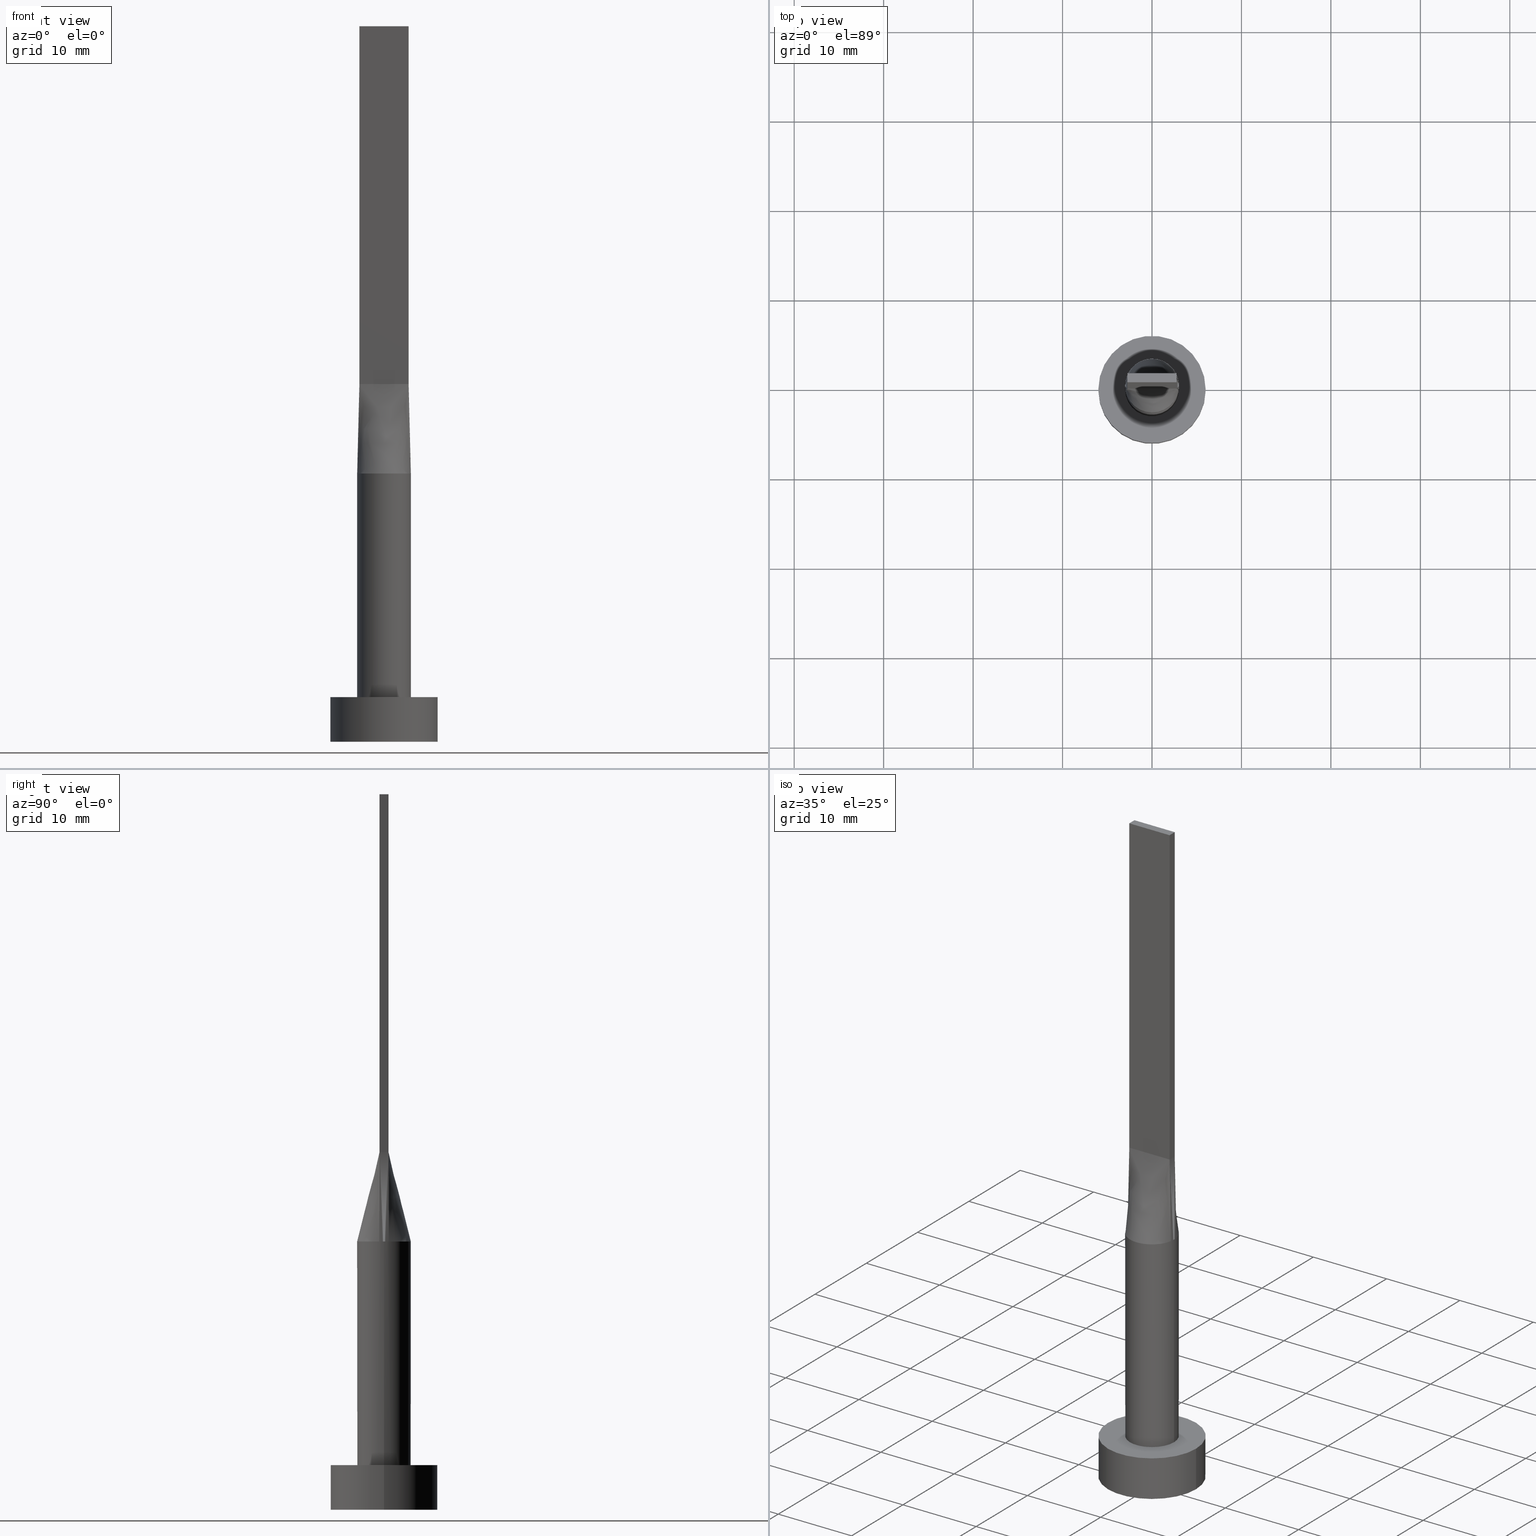
[diagram: canonical four-view strip — front | top / right | iso, engineering-drawing reading convention]
A machine part, canonical four-view strip (front | top / right | iso — engineering-drawing reading convention). The complete STEP part file that produces these views, byte-faithful:
ISO-10303-21;
HEADER;
FILE_DESCRIPTION (( 'STEP AP203' ),
    '1' );
FILE_NAME ('9335.STEP',
    '2023-02-13T12:29:20',
    ( '' ),
    ( '' ),
    'SwSTEP 2.0',
    'SolidWorks 2019',
    '' );
FILE_SCHEMA (( 'CONFIG_CONTROL_DESIGN' ));
ENDSEC;

DATA;
#1 = CARTESIAN_POINT ( 'NONE',  ( 0.000000000000000000, 0.000000000000000000, 0.000000000000000000 ) ) ;
#2 = DIRECTION ( 'NONE',  ( 0.000000000000000000, 0.000000000000000000, 1.000000000000000000 ) ) ;
#3 = CARTESIAN_POINT ( 'NONE',  ( -0.8331239790496237640, 2.909606296598777231, 30.00000000000000000 ) ) ;
#4 = CARTESIAN_POINT ( 'NONE',  ( -2.750000000000000000, 0.5000000000000002220, 40.00000000000000000 ) ) ;
#5 = EDGE_CURVE ( 'NONE', #171, #61, #465, .T. ) ;
#6 = LINE ( 'NONE', #543, #510 ) ;
#7 = CARTESIAN_POINT ( 'NONE',  ( 2.951871110830718514, 0.5367036202482695639, 30.00000000000000355 ) ) ;
#8 = CARTESIAN_POINT ( 'NONE',  ( 0.4172881767044975820, 3.000000000000000000, 30.00000000000000355 ) ) ;
#9 = B_SPLINE_SURFACE_WITH_KNOTS ( 'NONE', 3, 1, ( 
 ( #134, #189 ),
 ( #377, #374 ),
 ( #364, #280 ),
 ( #542, #51 ),
 ( #232, #276 ),
 ( #548, #324 ) ),
 .UNSPECIFIED., .F., .F., .F.,
 ( 4, 2, 4 ),
 ( 2, 2 ),
 ( 0.000000000000000000, 0.5000000000000000000, 1.000000000000000000 ),
 ( 0.000000000000000000, 1.000000000000000000 ),
 .UNSPECIFIED. ) ;
#10 = FACE_OUTER_BOUND ( 'NONE', #450, .T. ) ;
#11 = EDGE_CURVE ( 'NONE', #560, #127, #547, .T. ) ;
#12 = CALENDAR_DATE ( 2023, 13, 2 ) ;
#13 = CARTESIAN_POINT ( 'NONE',  ( 2.750000000000000000, -0.1666666666666653529, 39.99999999999999289 ) ) ;
#14 = SECURITY_CLASSIFICATION_LEVEL ( 'unclassified' ) ;
#15 = CARTESIAN_POINT ( 'NONE',  ( -3.000000000000000444, 0.000000000000000000, 30.00000000000000355 ) ) ;
#16 = EDGE_LOOP ( 'NONE', ( #291, #200, #516, #106 ) ) ;
#17 = PERSON_AND_ORGANIZATION ( #500, #67 ) ;
#18 = CARTESIAN_POINT ( 'NONE',  ( 0.000000000000000000, 0.000000000000000000, 30.00000000000000355 ) ) ;
#19 = ADVANCED_FACE ( 'NONE', ( #361 ), #216, .F. ) ;
#20 = EDGE_LOOP ( 'NONE', ( #211, #403, #489, #197 ) ) ;
#21 = DIRECTION ( 'NONE',  ( -0.000000000000000000, -0.000000000000000000, -1.000000000000000000 ) ) ;
#22 = LINE ( 'NONE', #15, #282 ) ;
#23 = ORIENTED_EDGE ( 'NONE', *, *, #570, .T. ) ;
#24 = UNCERTAINTY_MEASURE_WITH_UNIT (LENGTH_MEASURE( 1.000000000000000082E-05 ), #191, 'distance_accuracy_value', 'NONE');
#25 = CARTESIAN_POINT ( 'NONE',  ( 0.000000000000000000, 0.000000000000000000, 5.000000000000000000 ) ) ;
#26 = LINE ( 'NONE', #334, #490 ) ;
#27 = VERTEX_POINT ( 'NONE', #405 ) ;
#28 = AXIS2_PLACEMENT_3D ( 'NONE', #185, #235, #273 ) ;
#29 = APPROVAL_PERSON_ORGANIZATION ( #333, #99, #433 ) ;
#30 = CARTESIAN_POINT ( 'NONE',  ( -2.567367750129864845, -1.580669302822274691, 30.00000000000001066 ) ) ;
#31 = ORIENTED_EDGE ( 'NONE', *, *, #446, .F. ) ;
#32 = EDGE_CURVE ( 'NONE', #335, #519, #494, .T. ) ;
#33 = CARTESIAN_POINT ( 'NONE',  ( -1.882426928433514224, -2.362790634184934291, 30.00000000000000355 ) ) ;
#34 = ORIENTED_EDGE ( 'NONE', *, *, #268, .T. ) ;
#35 = APPROVAL_STATUS ( 'not_yet_approved' ) ;
#36 = CARTESIAN_POINT ( 'NONE',  ( -0.4172881767044983592, -2.999999999999999556, 30.00000000000000355 ) ) ;
#37 = PLANE ( 'NONE',  #481 ) ;
#38 = CIRCLE ( 'NONE', #370, 3.000000000000000444 ) ;
#39 = CARTESIAN_POINT ( 'NONE',  ( 0.8331239790496235420, -2.909606296598777231, 30.00000000000000000 ) ) ;
#40 = CARTESIAN_POINT ( 'NONE',  ( 0.000000000000000000, 0.000000000000000000, 30.00000000000000355 ) ) ;
#41 = EDGE_CURVE ( 'NONE', #252, #335, #122, .T. ) ;
#42 = CARTESIAN_POINT ( 'NONE',  ( 2.750000000000000000, 0.5000000000000002220, 80.00000000000000000 ) ) ;
#43 = ORIENTED_EDGE ( 'NONE', *, *, #305, .T. ) ;
#44 = CARTESIAN_POINT ( 'NONE',  ( -0.2291666666666670460, 0.5000000000000002220, 39.99999999999999289 ) ) ;
#45 = CARTESIAN_POINT ( 'NONE',  ( -2.750000000000000000, -0.4999999999999994449, 80.00000000000000000 ) ) ;
#46 = DIRECTION ( 'NONE',  ( -0.000000000000000000, -0.000000000000000000, -1.000000000000000000 ) ) ;
#47 = DIRECTION ( 'NONE',  ( 1.000000000000000000, -5.913830031739115543E-17, 0.000000000000000000 ) ) ;
#48 =( GEOMETRIC_REPRESENTATION_CONTEXT ( 3 ) GLOBAL_UNCERTAINTY_ASSIGNED_CONTEXT ( ( #24 ) ) GLOBAL_UNIT_ASSIGNED_CONTEXT ( ( #191, #381, #149 ) ) REPRESENTATION_CONTEXT ( 'NONE', 'WORKASPACE' ) );
#49 = EDGE_CURVE ( 'NONE', #27, #257, #76, .T. ) ;
#50 = CARTESIAN_POINT ( 'NONE',  ( -1.145833333333333703, 0.5000000000000002220, 39.99999999999999289 ) ) ;
#51 = CARTESIAN_POINT ( 'NONE',  ( -2.750000000000000000, -0.1666666666666678787, 39.99999999999999289 ) ) ;
#52 = CARTESIAN_POINT ( 'NONE',  ( 0.000000000000000000, 0.000000000000000000, 5.000000000000000000 ) ) ;
#53 = DIRECTION ( 'NONE',  ( 1.000000000000000000, 0.000000000000000000, 0.000000000000000000 ) ) ;
#54 = CARTESIAN_POINT ( 'NONE',  ( -6.000000000000000888, 0.000000000000000000, 5.000000000000000000 ) ) ;
#55 = CARTESIAN_POINT ( 'NONE',  ( 2.750000000000000000, 0.5000000000000002220, 80.00000000000000000 ) ) ;
#56 = CC_DESIGN_DATE_AND_TIME_ASSIGNMENT ( #155, #391, ( #80 ) ) ;
#57 = PERSON_AND_ORGANIZATION ( #500, #67 ) ;
#58 = LINE ( 'NONE', #415, #112 ) ;
#59 = CALENDAR_DATE ( 2023, 13, 2 ) ;
#60 = CARTESIAN_POINT ( 'NONE',  ( 2.951609730299722845, 0.5366563145999491136, 30.00000000000000355 ) ) ;
#61 = VERTEX_POINT ( 'NONE', #398 ) ;
#62 = ADVANCED_FACE ( 'NONE', ( #351, #530 ), #37, .T. ) ;
#63 = COORDINATED_UNIVERSAL_TIME_OFFSET ( 1, 0, .AHEAD. ) ;
#64 = CARTESIAN_POINT ( 'NONE',  ( 6.000000000000000888, 7.347880794884120722E-16, 0.000000000000000000 ) ) ;
#65 = CLOSED_SHELL ( 'NONE', ( #210, #531, #151, #62, #247, #545, #394, #336, #167, #429, #119, #310, #502, #19, #320 ) ) ;
#66 = ORIENTED_EDGE ( 'NONE', *, *, #135, .F. ) ;
#67 = ORGANIZATION ( 'NEUR�EN�', 'NEUR�EN�', '' ) ;
#68 = APPLICATION_PROTOCOL_DEFINITION ( 'international standard', 'config_control_design', 1994, #281 ) ;
#69 = PLANE ( 'NONE',  #466 ) ;
#70 = VERTEX_POINT ( 'NONE', #499 ) ;
#71 = CARTESIAN_POINT ( 'NONE',  ( 2.750000000000000000, -0.3333333333333324267, 39.99999999999999289 ) ) ;
#72 = ORIENTED_EDGE ( 'NONE', *, *, #49, .T. ) ;
#73 = DIRECTION ( 'NONE',  ( -0.000000000000000000, 0.000000000000000000, -1.000000000000000000 ) ) ;
#74 = EDGE_LOOP ( 'NONE', ( #438, #34, #120, #66, #332 ) ) ;
#75 = CARTESIAN_POINT ( 'NONE',  ( 2.520833333333333037, 0.5000000000000002220, 39.99999999999999289 ) ) ;
#76 = LINE ( 'NONE', #445, #292 ) ;
#77 = CARTESIAN_POINT ( 'NONE',  ( -0.8331239790496237640, 2.909606296598777231, 30.00000000000000000 ) ) ;
#78 = DIRECTION ( 'NONE',  ( -1.000000000000000000, 0.000000000000000000, 0.000000000000000000 ) ) ;
#79 = APPROVAL_DATE_TIME ( #214, #192 ) ;
#80 = PRODUCT_DEFINITION ( 'NEZN�M�', '', #103, #371 ) ;
#81 = CARTESIAN_POINT ( 'NONE',  ( -2.907609730299723250, 0.7786563145999495505, 30.00000000000000355 ) ) ;
#82 = ORIENTED_EDGE ( 'NONE', *, *, #418, .F. ) ;
#83 = CARTESIAN_POINT ( 'NONE',  ( -0.8331239790496242081, -2.909606296598777231, 30.00000000000000355 ) ) ;
#84 = VECTOR ( 'NONE', #511, 1000.000000000000000 ) ;
#85 = EDGE_LOOP ( 'NONE', ( #296, #117, #448, #162 ) ) ;
#86 = AXIS2_PLACEMENT_3D ( 'NONE', #144, #21, #507 ) ;
#87 = CARTESIAN_POINT ( 'NONE',  ( -2.907609730299723250, 0.7786563145999495505, 30.00000000000000355 ) ) ;
#88 = ORIENTED_EDGE ( 'NONE', *, *, #478, .T. ) ;
#89 = CARTESIAN_POINT ( 'NONE',  ( -1.566158656300002061, 2.589797565249319700, 30.00000000000000000 ) ) ;
#90 = LINE ( 'NONE', #4, #360 ) ;
#91 = EDGE_CURVE ( 'NONE', #479, #355, #38, .T. ) ;
#92 = DIRECTION ( 'NONE',  ( 0.000000000000000000, 0.000000000000000000, 1.000000000000000000 ) ) ;
#93 = CARTESIAN_POINT ( 'NONE',  ( 0.000000000000000000, 0.000000000000000000, 30.00000000000000355 ) ) ;
#94 = SECURITY_CLASSIFICATION ( '', '', #14 ) ;
#95 = B_SPLINE_CURVE_WITH_KNOTS ( 'NONE', 3,
 ( #170, #492, #209, #207, #251, #205, #259, #532, #440, #306, #77, #452, #212, #399, #572, #126, #81, #574 ),
 .UNSPECIFIED., .F., .F.,
 ( 4, 2, 2, 2, 2, 2, 2, 2, 4 ),
 ( 0.000000000000000000, 0.1250000000000000000, 0.2500000000000000000, 0.3750000000000000000, 0.5000000000000000000, 0.6250000000000000000, 0.7500000000000000000, 0.8750000000000000000, 1.000000000000000000 ),
 .UNSPECIFIED. ) ;
#96 = CARTESIAN_POINT ( 'NONE',  ( -1.604166666666666963, 0.5000000000000002220, 39.99999999999999289 ) ) ;
#97 = LINE ( 'NONE', #55, #264 ) ;
#98 = DIRECTION ( 'NONE',  ( -0.000000000000000000, -0.000000000000000000, -1.000000000000000000 ) ) ;
#99 = APPROVAL ( #388, 'NEUR�EN�' ) ;
#100 = CARTESIAN_POINT ( 'NONE',  ( 2.999804865149861666, 7.183978618307599791E-16, 30.00000000000000355 ) ) ;
#101 = DIRECTION ( 'NONE',  ( 0.000000000000000000, 0.000000000000000000, 1.000000000000000000 ) ) ;
#102 = CARTESIAN_POINT ( 'NONE',  ( 0.000000000000000000, 0.000000000000000000, 5.000000000000000000 ) ) ;
#103 = PRODUCT_DEFINITION_FORMATION_WITH_SPECIFIED_SOURCE ( 'LIBOVOLN�', '', #412, .NOT_KNOWN. ) ;
#104 = PERSON_AND_ORGANIZATION_ROLE ( 'classification_officer' ) ;
#105 = LINE ( 'NONE', #382, #253 ) ;
#106 = ORIENTED_EDGE ( 'NONE', *, *, #159, .T. ) ;
#107 = PERSON_AND_ORGANIZATION_ROLE ( 'creator' ) ;
#108 = DIRECTION ( 'NONE',  ( 0.02015674154923146819, -0.003664862099860173583, 0.9997901152521495582 ) ) ;
#109 = ORIENTED_EDGE ( 'NONE', *, *, #285, .F. ) ;
#110 = EDGE_CURVE ( 'NONE', #519, #471, #58, .T. ) ;
#111 = LINE ( 'NONE', #477, #539 ) ;
#112 = VECTOR ( 'NONE', #459, 1000.000000000000114 ) ;
#113 = ORIENTED_EDGE ( 'NONE', *, *, #570, .F. ) ;
#114 = AXIS2_PLACEMENT_3D ( 'NONE', #1, #579, #376 ) ;
#115 = DATE_AND_TIME ( #12, #431 ) ;
#116 = DIRECTION ( 'NONE',  ( -1.000000000000000000, -0.000000000000000000, -0.000000000000000000 ) ) ;
#117 = ORIENTED_EDGE ( 'NONE', *, *, #217, .F. ) ;
#118 = CARTESIAN_POINT ( 'NONE',  ( -3.000000000000000444, 0.000000000000000000, 5.000000000000000000 ) ) ;
#119 = ADVANCED_FACE ( 'NONE', ( #182 ), #508, .F. ) ;
#120 = ORIENTED_EDGE ( 'NONE', *, *, #110, .F. ) ;
#121 = CARTESIAN_POINT ( 'NONE',  ( 2.951609730299722401, 0.5366563145999496687, 30.00000000000000355 ) ) ;
#122 = LINE ( 'NONE', #304, #230 ) ;
#123 = CARTESIAN_POINT ( 'NONE',  ( -0.4583333333333340365, -0.4999999999999995559, 39.99999999999999289 ) ) ;
#124 = EDGE_LOOP ( 'NONE', ( #43, #573, #524, #538 ) ) ;
#125 = EDGE_CURVE ( 'NONE', #355, #479, #203, .T. ) ;
#126 = CARTESIAN_POINT ( 'NONE',  ( -2.829409566978765334, 1.041313647073049298, 30.00000000000001066 ) ) ;
#127 = VERTEX_POINT ( 'NONE', #100 ) ;
#128 = CARTESIAN_POINT ( 'NONE',  ( 0.2291666666666659635, -0.4999999999999995559, 39.99999999999999289 ) ) ;
#129 = VERTEX_POINT ( 'NONE', #147 ) ;
#130 = VECTOR ( 'NONE', #571, 1000.000000000000000 ) ;
#131 = CARTESIAN_POINT ( 'NONE',  ( 0.4583333333333325932, -0.4999999999999995559, 39.99999999999999289 ) ) ;
#132 = DIRECTION ( 'NONE',  ( 1.000000000000000000, 0.000000000000000000, 0.000000000000000000 ) ) ;
#133 = CARTESIAN_POINT ( 'NONE',  ( 1.833333333333333037, 0.5000000000000002220, 39.99999999999999289 ) ) ;
#134 = CARTESIAN_POINT ( 'NONE',  ( -2.951609730299722401, 0.5366563145999495577, 30.00000000000000355 ) ) ;
#135 = EDGE_CURVE ( 'NONE', #70, #519, #90, .T. ) ;
#136 = FACE_OUTER_BOUND ( 'NONE', #339, .T. ) ;
#137 = CYLINDRICAL_SURFACE ( 'NONE', #549, 6.000000000000000888 ) ;
#138 = AXIS2_PLACEMENT_3D ( 'NONE', #173, #487, #132 ) ;
#139 = PLANE ( 'NONE',  #523 ) ;
#140 = CARTESIAN_POINT ( 'NONE',  ( 0.000000000000000000, 0.000000000000000000, 5.000000000000000000 ) ) ;
#141 = CIRCLE ( 'NONE', #342, 6.000000000000000888 ) ;
#142 = APPROVAL_PERSON_ORGANIZATION ( #57, #495, #289 ) ;
#143 = EDGE_CURVE ( 'NONE', #471, #560, #509, .T. ) ;
#144 = CARTESIAN_POINT ( 'NONE',  ( 0.000000000000000000, 0.000000000000000000, 30.00000000000000355 ) ) ;
#145 = DIRECTION ( 'NONE',  ( 1.000000000000000000, 0.000000000000000000, -0.000000000000000000 ) ) ;
#146 = CARTESIAN_POINT ( 'NONE',  ( -0.4583333333333337034, 0.5000000000000002220, 39.99999999999999289 ) ) ;
#147 = CARTESIAN_POINT ( 'NONE',  ( 2.750000000000000000, 0.5000000000000002220, 40.00000000000000000 ) ) ;
#148 = CARTESIAN_POINT ( 'NONE',  ( 2.750000000000000000, 0.5000000000000002220, 40.00000000000000000 ) ) ;
#149 =( NAMED_UNIT ( * ) SI_UNIT ( $, .STERADIAN. ) SOLID_ANGLE_UNIT ( ) );
#150 = DIRECTION ( 'NONE',  ( -0.000000000000000000, -0.000000000000000000, -1.000000000000000000 ) ) ;
#151 = ADVANCED_FACE ( 'NONE', ( #229 ), #137, .T. ) ;
#152 = VERTEX_POINT ( 'NONE', #7 ) ;
#153 = DIRECTION ( 'NONE',  ( 1.000000000000000000, 0.000000000000000000, 0.000000000000000000 ) ) ;
#154 = ORIENTED_EDGE ( 'NONE', *, *, #305, .F. ) ;
#155 = DATE_AND_TIME ( #422, #383 ) ;
#156 = DIRECTION ( 'NONE',  ( 0.000000000000000000, 0.000000000000000000, 1.000000000000000000 ) ) ;
#157 = ORIENTED_EDGE ( 'NONE', *, *, #401, .T. ) ;
#158 = APPLICATION_CONTEXT ( 'configuration controlled 3d designs of mechanical parts and assemblies' ) ;
#159 = EDGE_CURVE ( 'NONE', #252, #70, #319, .T. ) ;
#160 = PERSON_AND_ORGANIZATION ( #500, #67 ) ;
#161 = CARTESIAN_POINT ( 'NONE',  ( 2.983609730299723317, 0.3606563145999492903, 30.00000000000000355 ) ) ;
#162 = ORIENTED_EDGE ( 'NONE', *, *, #418, .T. ) ;
#163 = CARTESIAN_POINT ( 'NONE',  ( 2.907609730299723250, -0.7786563145999499946, 30.00000000000000355 ) ) ;
#164 = ORIENTED_EDGE ( 'NONE', *, *, #401, .F. ) ;
#165 = CARTESIAN_POINT ( 'NONE',  ( 2.567367750129863957, 1.580669302822274913, 30.00000000000001066 ) ) ;
#166 = ORIENTED_EDGE ( 'NONE', *, *, #11, .T. ) ;
#167 = ADVANCED_FACE ( 'NONE', ( #544 ), #9, .T. ) ;
#168 = CARTESIAN_POINT ( 'NONE',  ( 1.566158656300001395, -2.589797565249319256, 30.00000000000000000 ) ) ;
#169 = ORIENTED_EDGE ( 'NONE', *, *, #49, .F. ) ;
#170 = CARTESIAN_POINT ( 'NONE',  ( 2.951871110830718514, 0.5367036202482695639, 30.00000000000000355 ) ) ;
#171 = VERTEX_POINT ( 'NONE', #317 ) ;
#172 = CARTESIAN_POINT ( 'NONE',  ( -0.2291666666666674346, -0.4999999999999995559, 40.00000000000000000 ) ) ;
#173 = CARTESIAN_POINT ( 'NONE',  ( 0.000000000000000000, 0.000000000000000000, 30.00000000000000355 ) ) ;
#174 = CC_DESIGN_PERSON_AND_ORGANIZATION_ASSIGNMENT ( #17, #379, ( #103 ) ) ;
#175 = AXIS2_PLACEMENT_3D ( 'NONE', #515, #331, #153 ) ;
#176 = DIRECTION ( 'NONE',  ( -0.02015674154923150635, -0.003664862099860195267, 0.9997901152521495582 ) ) ;
#177 = LOCAL_TIME ( 13, 29, 20.00000000000000000, #286 ) ;
#178 = DIRECTION ( 'NONE',  ( 1.000000000000000000, 0.000000000000000000, 0.000000000000000000 ) ) ;
#179 = CARTESIAN_POINT ( 'NONE',  ( 1.145833333333333037, 0.5000000000000002220, 39.99999999999999289 ) ) ;
#180 = FACE_OUTER_BOUND ( 'NONE', #349, .T. ) ;
#181 = LINE ( 'NONE', #498, #373 ) ;
#182 = FACE_OUTER_BOUND ( 'NONE', #124, .T. ) ;
#183 = CC_DESIGN_PERSON_AND_ORGANIZATION_ASSIGNMENT ( #160, #517, ( #412 ) ) ;
#184 = DIRECTION ( 'NONE',  ( -0.000000000000000000, -0.000000000000000000, -1.000000000000000000 ) ) ;
#185 = CARTESIAN_POINT ( 'NONE',  ( 0.000000000000000000, 0.000000000000000000, 5.000000000000000000 ) ) ;
#186 = VECTOR ( 'NONE', #413, 1000.000000000000114 ) ;
#187 = AXIS2_PLACEMENT_3D ( 'NONE', #318, #92, #419 ) ;
#188 = CARTESIAN_POINT ( 'NONE',  ( -2.951609730299722401, 0.5366563145999488915, 30.00000000000000355 ) ) ;
#189 = CARTESIAN_POINT ( 'NONE',  ( -2.750000000000000000, 0.5000000000000002220, 40.00000000000000000 ) ) ;
#190 = CARTESIAN_POINT ( 'NONE',  ( 2.750000000000000000, 0.1666666666666679619, 39.99999999999999289 ) ) ;
#191 =( LENGTH_UNIT ( ) NAMED_UNIT ( * ) SI_UNIT ( .MILLI., .METRE. ) );
#192 = APPROVAL ( #35, 'NEUR�EN�' ) ;
#193 = DIRECTION ( 'NONE',  ( 0.000000000000000000, 0.000000000000000000, 1.000000000000000000 ) ) ;
#194 = ORIENTED_EDGE ( 'NONE', *, *, #536, .T. ) ;
#195 = APPROVAL_PERSON_ORGANIZATION ( #353, #192, #255 ) ;
#196 = CARTESIAN_POINT ( 'NONE',  ( -2.750000000000000000, -0.4999999999999994449, 80.00000000000000000 ) ) ;
#197 = ORIENTED_EDGE ( 'NONE', *, *, #110, .T. ) ;
#198 = APPROVAL_DATE_TIME ( #428, #99 ) ;
#199 = CARTESIAN_POINT ( 'NONE',  ( 0.000000000000000000, 0.000000000000000000, 0.000000000000000000 ) ) ;
#200 = ORIENTED_EDGE ( 'NONE', *, *, #32, .F. ) ;
#201 = CALENDAR_DATE ( 2023, 13, 2 ) ;
#202 = DIRECTION ( 'NONE',  ( 1.000000000000000000, 0.000000000000000000, -0.000000000000000000 ) ) ;
#203 = CIRCLE ( 'NONE', #28, 3.000000000000000444 ) ;
#204 = ORIENTED_EDGE ( 'NONE', *, *, #439, .T. ) ;
#205 = CARTESIAN_POINT ( 'NONE',  ( 1.882426928433512892, 2.362790634184934291, 30.00000000000000355 ) ) ;
#206 = EDGE_LOOP ( 'NONE', ( #260, #23 ) ) ;
#207 = CARTESIAN_POINT ( 'NONE',  ( 2.567367750129863957, 1.580669302822274913, 30.00000000000001066 ) ) ;
#208 = DIRECTION ( 'NONE',  ( -0.000000000000000000, -0.000000000000000000, -1.000000000000000000 ) ) ;
#209 = CARTESIAN_POINT ( 'NONE',  ( 2.829409566978765778, 1.041313647073049298, 30.00000000000001421 ) ) ;
#210 = ADVANCED_FACE ( 'NONE', ( #10 ), #464, .T. ) ;
#211 = ORIENTED_EDGE ( 'NONE', *, *, #143, .T. ) ;
#212 = CARTESIAN_POINT ( 'NONE',  ( -1.882426928433513336, 2.362790634184935623, 30.00000000000000711 ) ) ;
#213 = ORIENTED_EDGE ( 'NONE', *, *, #410, .T. ) ;
#214 = DATE_AND_TIME ( #346, #297 ) ;
#215 = CARTESIAN_POINT ( 'NONE',  ( 2.750000000000000000, 0.5000000000000002220, 40.00000000000000000 ) ) ;
#216 = PLANE ( 'NONE',  #427 ) ;
#217 = EDGE_CURVE ( 'NONE', #426, #129, #97, .T. ) ;
#218 = CARTESIAN_POINT ( 'NONE',  ( -6.000000000000000888, 0.000000000000000000, 0.000000000000000000 ) ) ;
#219 = ORIENTED_EDGE ( 'NONE', *, *, #472, .T. ) ;
#220 = VECTOR ( 'NONE', #269, 1000.000000000000000 ) ;
#221 = CARTESIAN_POINT ( 'NONE',  ( -2.567367750129864401, 1.580669302822275357, 30.00000000000001421 ) ) ;
#222 = CC_DESIGN_APPROVAL ( #192, ( #94 ) ) ;
#223 = CARTESIAN_POINT ( 'NONE',  ( 2.850804865149861200, -0.5183281572999745013, 35.00000000000000000 ) ) ;
#224 = PRODUCT_DEFINITION_SHAPE ( 'NONE', 'NONE',  #80 ) ;
#225 = CARTESIAN_POINT ( 'NONE',  ( 0.4583333333333330373, 0.5000000000000002220, 39.99999999999999289 ) ) ;
#226 = EDGE_CURVE ( 'NONE', #335, #315, #278, .T. ) ;
#227 = CARTESIAN_POINT ( 'NONE',  ( 2.750000000000000000, 0.5000000000000002220, 80.00000000000000000 ) ) ;
#228 = FACE_OUTER_BOUND ( 'NONE', #435, .T. ) ;
#229 = FACE_OUTER_BOUND ( 'NONE', #270, .T. ) ;
#230 = VECTOR ( 'NONE', #483, 1000.000000000000000 ) ;
#231 = FACE_OUTER_BOUND ( 'NONE', #557, .T. ) ;
#232 = CARTESIAN_POINT ( 'NONE',  ( -2.983609730299723317, -0.3606563145999489572, 30.00000000000000355 ) ) ;
#233 = B_SPLINE_SURFACE_WITH_KNOTS ( 'NONE', 3, 1, ( 
 ( #473, #430 ),
 ( #338, #518 ),
 ( #295, #475 ),
 ( #30, #449 ),
 ( #576, #484 ),
 ( #33, #266 ),
 ( #529, #447 ),
 ( #83, #123 ),
 ( #36, #172 ),
 ( #262, #128 ),
 ( #39, #131 ),
 ( #168, #486 ),
 ( #397, #404 ),
 ( #303, #402 ),
 ( #568, #359 ),
 ( #350, #482 ),
 ( #163, #537 ),
 ( #354, #308 ) ),
 .UNSPECIFIED., .F., .F., .F.,
 ( 4, 2, 2, 2, 2, 2, 2, 2, 4 ),
 ( 2, 2 ),
 ( 0.000000000000000000, 0.1250000000000000000, 0.2500000000000000000, 0.3750000000000000000, 0.5000000000000000000, 0.6250000000000000000, 0.7500000000000000000, 0.8750000000000000000, 1.000000000000000000 ),
 ( 0.000000000000000000, 1.000000000000000000 ),
 .UNSPECIFIED. ) ;
#234 = APPROVAL_STATUS ( 'not_yet_approved' ) ;
#235 = DIRECTION ( 'NONE',  ( 0.000000000000000000, 0.000000000000000000, 1.000000000000000000 ) ) ;
#236 = EDGE_CURVE ( 'NONE', #560, #396, #421, .T. ) ;
#237 = DATE_AND_TIME ( #59, #177 ) ;
#238 = CARTESIAN_POINT ( 'NONE',  ( 2.750000000000000000, -0.4999999999999997780, 40.00000000000000000 ) ) ;
#239 = ORIENTED_EDGE ( 'NONE', *, *, #41, .T. ) ;
#240 = PERSON_AND_ORGANIZATION_ROLE ( 'creator' ) ;
#241 = PLANE ( 'NONE',  #284 ) ;
#242 = ORIENTED_EDGE ( 'NONE', *, *, #348, .T. ) ;
#243 = CIRCLE ( 'NONE', #321, 3.000000000000000444 ) ;
#244 = AXIS2_PLACEMENT_3D ( 'NONE', #25, #245, #436 ) ;
#245 = DIRECTION ( 'NONE',  ( 0.000000000000000000, 0.000000000000000000, 1.000000000000000000 ) ) ;
#246 = DIRECTION ( 'NONE',  ( 1.000000000000000000, 0.000000000000000000, -0.000000000000000000 ) ) ;
#247 = ADVANCED_FACE ( 'NONE', ( #180 ), #69, .F. ) ;
#248 = ORIENTED_EDGE ( 'NONE', *, *, #91, .F. ) ;
#249 = DIRECTION ( 'NONE',  ( 1.000000000000000000, 0.000000000000000000, 0.000000000000000000 ) ) ;
#250 = ORIENTED_EDGE ( 'NONE', *, *, #328, .F. ) ;
#251 = CARTESIAN_POINT ( 'NONE',  ( 2.382399439808187580, 1.857547746650221709, 30.00000000000000711 ) ) ;
#252 = VERTEX_POINT ( 'NONE', #287 ) ;
#253 = VECTOR ( 'NONE', #108, 1000.000000000000114 ) ;
#254 = CC_DESIGN_APPROVAL ( #99, ( #80 ) ) ;
#255 = APPROVAL_ROLE ( '' ) ;
#256 = CARTESIAN_POINT ( 'NONE',  ( 2.829409566978765778, 1.041313647073049298, 30.00000000000001421 ) ) ;
#257 = VERTEX_POINT ( 'NONE', #64 ) ;
#258 = CC_DESIGN_PERSON_AND_ORGANIZATION_ASSIGNMENT ( #554, #107, ( #80 ) ) ;
#259 = CARTESIAN_POINT ( 'NONE',  ( 1.566158656300002061, 2.589797565249318811, 30.00000000000000000 ) ) ;
#260 = ORIENTED_EDGE ( 'NONE', *, *, #285, .T. ) ;
#261 = SHAPE_DEFINITION_REPRESENTATION ( #224, #378 ) ;
#262 = CARTESIAN_POINT ( 'NONE',  ( 0.4172881767044969714, -3.000000000000000444, 29.99999999999999645 ) ) ;
#263 = ORIENTED_EDGE ( 'NONE', *, *, #32, .T. ) ;
#264 = VECTOR ( 'NONE', #417, 1000.000000000000000 ) ;
#265 = CIRCLE ( 'NONE', #187, 3.000000000000000444 ) ;
#266 = CARTESIAN_POINT ( 'NONE',  ( -1.145833333333333703, -0.4999999999999995559, 39.99999999999999289 ) ) ;
#267 = ORIENTED_EDGE ( 'NONE', *, *, #125, .T. ) ;
#268 = EDGE_CURVE ( 'NONE', #61, #471, #243, .T. ) ;
#269 = DIRECTION ( 'NONE',  ( 1.000000000000000000, -5.913830031739115543E-17, 0.000000000000000000 ) ) ;
#270 = EDGE_LOOP ( 'NONE', ( #169, #109, #387, #288 ) ) ;
#271 = B_SPLINE_SURFACE_WITH_KNOTS ( 'NONE', 3, 1, ( 
 ( #386, #238 ),
 ( #434, #71 ),
 ( #480, #13 ),
 ( #559, #190 ),
 ( #161, #344 ),
 ( #60, #148 ) ),
 .UNSPECIFIED., .F., .F., .F.,
 ( 4, 2, 4 ),
 ( 2, 2 ),
 ( 0.000000000000000000, 0.5000000000000000000, 1.000000000000000000 ),
 ( 0.000000000000000000, 1.000000000000000000 ),
 .UNSPECIFIED. ) ;
#272 = CARTESIAN_POINT ( 'NONE',  ( -2.382399439808186692, 1.857547746650221265, 30.00000000000001066 ) ) ;
#273 = DIRECTION ( 'NONE',  ( 1.000000000000000000, 0.000000000000000000, 0.000000000000000000 ) ) ;
#274 = AXIS2_PLACEMENT_3D ( 'NONE', #504, #551, #457 ) ;
#275 = CARTESIAN_POINT ( 'NONE',  ( 1.882426928433512892, 2.362790634184934291, 30.00000000000000355 ) ) ;
#276 = CARTESIAN_POINT ( 'NONE',  ( -2.750000000000000000, -0.3333333333333339255, 39.99999999999999289 ) ) ;
#277 = CARTESIAN_POINT ( 'NONE',  ( 0.8331239790496237640, 2.909606296598776787, 30.00000000000000355 ) ) ;
#278 = LINE ( 'NONE', #462, #352 ) ;
#279 = CARTESIAN_POINT ( 'NONE',  ( -1.882426928433513336, 2.362790634184935623, 30.00000000000000711 ) ) ;
#280 = CARTESIAN_POINT ( 'NONE',  ( -2.750000000000000000, 0.1666666666666652696, 39.99999999999999289 ) ) ;
#281 = APPLICATION_CONTEXT ( 'configuration controlled 3d designs of mechanical parts and assemblies' ) ;
#282 = VECTOR ( 'NONE', #150, 1000.000000000000000 ) ;
#283 = DIRECTION ( 'NONE',  ( -0.000000000000000000, -0.000000000000000000, -1.000000000000000000 ) ) ;
#284 = AXIS2_PLACEMENT_3D ( 'NONE', #302, #193, #202 ) ;
#285 = EDGE_CURVE ( 'NONE', #300, #27, #141, .T. ) ;
#286 = COORDINATED_UNIVERSAL_TIME_OFFSET ( 1, 0, .AHEAD. ) ;
#287 = CARTESIAN_POINT ( 'NONE',  ( -2.750000000000000000, 0.5000000000000002220, 80.00000000000000000 ) ) ;
#288 = ORIENTED_EDGE ( 'NONE', *, *, #367, .T. ) ;
#289 = APPROVAL_ROLE ( '' ) ;
#290 = FACE_OUTER_BOUND ( 'NONE', #20, .T. ) ;
#291 = ORIENTED_EDGE ( 'NONE', *, *, #135, .T. ) ;
#292 = VECTOR ( 'NONE', #208, 1000.000000000000000 ) ;
#293 = EDGE_CURVE ( 'NONE', #426, #252, #340, .T. ) ;
#294 = CARTESIAN_POINT ( 'NONE',  ( 2.951896064709005785, -0.5367080392066734262, 30.00000000000000355 ) ) ;
#295 = CARTESIAN_POINT ( 'NONE',  ( -2.829409566978767110, -1.041313647073048854, 30.00000000000001421 ) ) ;
#296 = ORIENTED_EDGE ( 'NONE', *, *, #328, .T. ) ;
#297 = LOCAL_TIME ( 13, 29, 20.00000000000000000, #301 ) ;
#298 = APPROVAL_DATE_TIME ( #115, #495 ) ;
#299 = FACE_OUTER_BOUND ( 'NONE', #16, .T. ) ;
#300 = VERTEX_POINT ( 'NONE', #389 ) ;
#301 = COORDINATED_UNIVERSAL_TIME_OFFSET ( 1, 0, .AHEAD. ) ;
#302 = CARTESIAN_POINT ( 'NONE',  ( 0.000000000000000000, 0.000000000000000000, 80.00000000000000000 ) ) ;
#303 = CARTESIAN_POINT ( 'NONE',  ( 2.382399439808186692, -1.857547746650222154, 30.00000000000001066 ) ) ;
#304 = CARTESIAN_POINT ( 'NONE',  ( -2.750000000000000000, 0.5000000000000002220, 80.00000000000000000 ) ) ;
#305 = EDGE_CURVE ( 'NONE', #129, #70, #26, .T. ) ;
#306 = CARTESIAN_POINT ( 'NONE',  ( -0.4172881767044976375, 2.999999999999999556, 29.99999999999999645 ) ) ;
#307 = ORIENTED_EDGE ( 'NONE', *, *, #11, .F. ) ;
#308 = CARTESIAN_POINT ( 'NONE',  ( 2.750000000000000000, -0.4999999999999997780, 40.00000000000000000 ) ) ;
#309 = ORIENTED_EDGE ( 'NONE', *, *, #446, .T. ) ;
#310 = ADVANCED_FACE ( 'NONE', ( #299 ), #556, .F. ) ;
#311 = LINE ( 'NONE', #488, #408 ) ;
#312 = ORIENTED_EDGE ( 'NONE', *, *, #367, .F. ) ;
#313 = VECTOR ( 'NONE', #369, 1000.000000000000000 ) ;
#314 = CARTESIAN_POINT ( 'NONE',  ( 2.750000000000000000, -0.4999999999999997780, 40.00000000000000000 ) ) ;
#315 = VERTEX_POINT ( 'NONE', #423 ) ;
#316 = CARTESIAN_POINT ( 'NONE',  ( -2.750000000000000000, -0.4999999999999994449, 80.00000000000000000 ) ) ;
#317 = CARTESIAN_POINT ( 'NONE',  ( -2.951881273711813858, 0.5367053345652121887, 30.00000000000000355 ) ) ;
#318 = CARTESIAN_POINT ( 'NONE',  ( 0.000000000000000000, 0.000000000000000000, 30.00000000000000355 ) ) ;
#319 = LINE ( 'NONE', #497, #313 ) ;
#320 = ADVANCED_FACE ( 'NONE', ( #525 ), #241, .T. ) ;
#321 = AXIS2_PLACEMENT_3D ( 'NONE', #18, #425, #249 ) ;
#322 = DIRECTION ( 'NONE',  ( 5.913830031739115543E-17, 1.000000000000000000, -0.000000000000000000 ) ) ;
#323 = LOCAL_TIME ( 13, 29, 20.00000000000000000, #467 ) ;
#324 = CARTESIAN_POINT ( 'NONE',  ( -2.750000000000000000, -0.4999999999999993339, 40.00000000000000000 ) ) ;
#325 = CARTESIAN_POINT ( 'NONE',  ( 2.382399439808187580, 1.857547746650221709, 30.00000000000000711 ) ) ;
#326 = DIRECTION ( 'NONE',  ( 0.000000000000000000, 0.000000000000000000, 1.000000000000000000 ) ) ;
#327 = CARTESIAN_POINT ( 'NONE',  ( -2.291666666666666519, 0.5000000000000002220, 39.99999999999999289 ) ) ;
#328 = EDGE_CURVE ( 'NONE', #396, #129, #111, .T. ) ;
#329 = CARTESIAN_POINT ( 'NONE',  ( 0.000000000000000000, 0.000000000000000000, 5.000000000000000000 ) ) ;
#330 = AXIS2_PLACEMENT_3D ( 'NONE', #40, #575, #453 ) ;
#331 = DIRECTION ( 'NONE',  ( 0.000000000000000000, 0.000000000000000000, 1.000000000000000000 ) ) ;
#332 = ORIENTED_EDGE ( 'NONE', *, *, #375, .F. ) ;
#333 = PERSON_AND_ORGANIZATION ( #500, #67 ) ;
#334 = CARTESIAN_POINT ( 'NONE',  ( -2.750000000000000000, 0.5000000000000002220, 40.00000000000000000 ) ) ;
#335 = VERTEX_POINT ( 'NONE', #196 ) ;
#336 = ADVANCED_FACE ( 'NONE', ( #555 ), #271, .T. ) ;
#337 = CARTESIAN_POINT ( 'NONE',  ( 0.000000000000000000, 0.000000000000000000, 0.000000000000000000 ) ) ;
#338 = CARTESIAN_POINT ( 'NONE',  ( -2.907609730299723250, -0.7786563145999485513, 29.99999999999999645 ) ) ;
#339 = EDGE_LOOP ( 'NONE', ( #204, #82, #474, #263 ) ) ;
#340 = LINE ( 'NONE', #522, #84 ) ;
#341 = EDGE_LOOP ( 'NONE', ( #393, #248 ) ) ;
#342 = AXIS2_PLACEMENT_3D ( 'NONE', #470, #563, #437 ) ;
#343 = AXIS2_PLACEMENT_3D ( 'NONE', #52, #46, #372 ) ;
#344 = CARTESIAN_POINT ( 'NONE',  ( 2.750000000000000000, 0.3333333333333342585, 39.99999999999999289 ) ) ;
#345 = ORIENTED_EDGE ( 'NONE', *, *, #236, .F. ) ;
#346 = CALENDAR_DATE ( 2023, 13, 2 ) ;
#347 = CARTESIAN_POINT ( 'NONE',  ( 2.907609730299723250, 0.7786563145999496616, 29.99999999999999645 ) ) ;
#348 = EDGE_CURVE ( 'NONE', #61, #355, #22, .T. ) ;
#349 = EDGE_LOOP ( 'NONE', ( #312, #384 ) ) ;
#350 = CARTESIAN_POINT ( 'NONE',  ( 2.829409566978765334, -1.041313647073049742, 30.00000000000001066 ) ) ;
#351 = FACE_BOUND ( 'NONE', #341, .T. ) ;
#352 = VECTOR ( 'NONE', #47, 1000.000000000000000 ) ;
#353 = PERSON_AND_ORGANIZATION ( #500, #67 ) ;
#354 = CARTESIAN_POINT ( 'NONE',  ( 2.951609730299722401, -0.5366563145999492246, 30.00000000000000355 ) ) ;
#355 = VERTEX_POINT ( 'NONE', #118 ) ;
#356 = CC_DESIGN_DATE_AND_TIME_ASSIGNMENT ( #237, #424, ( #94 ) ) ;
#357 = LINE ( 'NONE', #534, #581 ) ;
#358 = ORIENTED_EDGE ( 'NONE', *, *, #512, .F. ) ;
#359 = CARTESIAN_POINT ( 'NONE',  ( 1.833333333333332593, -0.4999999999999997780, 39.99999999999999289 ) ) ;
#360 = VECTOR ( 'NONE', #506, 1000.000000000000000 ) ;
#361 = FACE_OUTER_BOUND ( 'NONE', #85, .T. ) ;
#362 = AXIS2_PLACEMENT_3D ( 'NONE', #337, #101, #514 ) ;
#363 = CARTESIAN_POINT ( 'NONE',  ( -2.829409566978765334, 1.041313647073049298, 30.00000000000001066 ) ) ;
#364 = CARTESIAN_POINT ( 'NONE',  ( -2.999609730299722887, 0.1803281572999750337, 30.00000000000000355 ) ) ;
#365 = CARTESIAN_POINT ( 'NONE',  ( -2.520833333333333037, 0.5000000000000002220, 39.99999999999999289 ) ) ;
#366 = DIRECTION ( 'NONE',  ( 0.000000000000000000, -0.000000000000000000, -1.000000000000000000 ) ) ;
#367 = EDGE_CURVE ( 'NONE', #432, #257, #441, .T. ) ;
#368 = DIRECTION ( 'NONE',  ( -1.000000000000000000, 5.913830031739115543E-17, 0.000000000000000000 ) ) ;
#369 = DIRECTION ( 'NONE',  ( -0.000000000000000000, -0.000000000000000000, -1.000000000000000000 ) ) ;
#370 = AXIS2_PLACEMENT_3D ( 'NONE', #329, #2, #53 ) ;
#371 = DESIGN_CONTEXT ( 'detailed design', #281, 'design' ) ;
#372 = DIRECTION ( 'NONE',  ( -1.000000000000000000, 0.000000000000000000, 0.000000000000000000 ) ) ;
#373 = VECTOR ( 'NONE', #98, 1000.000000000000000 ) ;
#374 = CARTESIAN_POINT ( 'NONE',  ( -2.750000000000000000, 0.3333333333333324822, 39.99999999999999289 ) ) ;
#375 = EDGE_CURVE ( 'NONE', #171, #70, #105, .T. ) ;
#376 = DIRECTION ( 'NONE',  ( 1.000000000000000000, 0.000000000000000000, 0.000000000000000000 ) ) ;
#377 = CARTESIAN_POINT ( 'NONE',  ( -2.983609730299722429, 0.3606563145999497344, 30.00000000000000355 ) ) ;
#378 = ADVANCED_BREP_SHAPE_REPRESENTATION ( '9335', ( #493, #362 ), #48 ) ;
#379 = PERSON_AND_ORGANIZATION_ROLE ( 'design_supplier' ) ;
#380 = DIRECTION ( 'NONE',  ( -0.000000000000000000, 1.000000000000000000, -0.000000000000000000 ) ) ;
#381 =( NAMED_UNIT ( * ) PLANE_ANGLE_UNIT ( ) SI_UNIT ( $, .RADIAN. ) );
#382 = CARTESIAN_POINT ( 'NONE',  ( -2.850804865149861200, 0.5183281572999746123, 35.00000000000000000 ) ) ;
#383 = LOCAL_TIME ( 13, 29, 20.00000000000000000, #562 ) ;
#384 = ORIENTED_EDGE ( 'NONE', *, *, #472, .F. ) ;
#385 = APPLICATION_PROTOCOL_DEFINITION ( 'international standard', 'config_control_design', 1994, #158 ) ;
#386 = CARTESIAN_POINT ( 'NONE',  ( 2.951609730299722401, -0.5366563145999498907, 30.00000000000000355 ) ) ;
#387 = ORIENTED_EDGE ( 'NONE', *, *, #512, .T. ) ;
#388 = APPROVAL_STATUS ( 'not_yet_approved' ) ;
#389 = CARTESIAN_POINT ( 'NONE',  ( -6.000000000000000888, 0.000000000000000000, 5.000000000000000000 ) ) ;
#390 = ORIENTED_EDGE ( 'NONE', *, *, #536, .F. ) ;
#391 = DATE_TIME_ROLE ( 'creation_date' ) ;
#392 = CARTESIAN_POINT ( 'NONE',  ( -2.750000000000000000, 0.5000000000000002220, 80.00000000000000000 ) ) ;
#393 = ORIENTED_EDGE ( 'NONE', *, *, #125, .F. ) ;
#394 = ADVANCED_FACE ( 'NONE', ( #290 ), #233, .T. ) ;
#395 = DIRECTION ( 'NONE',  ( 0.000000000000000000, 1.000000000000000000, 0.000000000000000000 ) ) ;
#396 = VERTEX_POINT ( 'NONE', #314 ) ;
#397 = CARTESIAN_POINT ( 'NONE',  ( 1.882426928433513114, -2.362790634184936511, 30.00000000000000711 ) ) ;
#398 = CARTESIAN_POINT ( 'NONE',  ( -2.999804865149861666, -2.046477192139111704E-15, 30.00000000000000355 ) ) ;
#399 = CARTESIAN_POINT ( 'NONE',  ( -2.382399439808186692, 1.857547746650221265, 30.00000000000001066 ) ) ;
#400 = EDGE_LOOP ( 'NONE', ( #157, #567, #154, #564 ) ) ;
#401 = EDGE_CURVE ( 'NONE', #152, #171, #95, .T. ) ;
#402 = CARTESIAN_POINT ( 'NONE',  ( 1.604166666666666075, -0.4999999999999997780, 39.99999999999999289 ) ) ;
#403 = ORIENTED_EDGE ( 'NONE', *, *, #236, .T. ) ;
#404 = CARTESIAN_POINT ( 'NONE',  ( 1.145833333333332371, -0.4999999999999996669, 39.99999999999999289 ) ) ;
#405 = CARTESIAN_POINT ( 'NONE',  ( 6.000000000000000888, 7.347880794884120722E-16, 5.000000000000000000 ) ) ;
#406 = CARTESIAN_POINT ( 'NONE',  ( -2.951885853416577277, -0.5367063210726346068, 30.00000000000000355 ) ) ;
#407 = ORIENTED_EDGE ( 'NONE', *, *, #348, .F. ) ;
#408 = VECTOR ( 'NONE', #527, 1000.000000000000000 ) ;
#409 = CC_DESIGN_SECURITY_CLASSIFICATION ( #94, ( #103 ) ) ;
#410 = EDGE_CURVE ( 'NONE', #315, #426, #357, .T. ) ;
#411 = CARTESIAN_POINT ( 'NONE',  ( 1.604166666666666519, 0.5000000000000002220, 39.99999999999999289 ) ) ;
#412 = PRODUCT ( '9335', '9335', '', ( #521 ) ) ;
#413 = DIRECTION ( 'NONE',  ( -0.02015674154923146819, 0.003664862099860249911, 0.9997901152521495582 ) ) ;
#414 = LINE ( 'NONE', #546, #220 ) ;
#415 = CARTESIAN_POINT ( 'NONE',  ( -2.850804865149861644, -0.5183281572999741682, 35.00000000000000000 ) ) ;
#416 = CARTESIAN_POINT ( 'NONE',  ( -2.750000000000000000, 0.5000000000000002220, 40.00000000000000000 ) ) ;
#417 = DIRECTION ( 'NONE',  ( -0.000000000000000000, -0.000000000000000000, -1.000000000000000000 ) ) ;
#418 = EDGE_CURVE ( 'NONE', #315, #396, #311, .T. ) ;
#419 = DIRECTION ( 'NONE',  ( 1.000000000000000000, 0.000000000000000000, 0.000000000000000000 ) ) ;
#420 = CIRCLE ( 'NONE', #244, 6.000000000000000888 ) ;
#421 = LINE ( 'NONE', #223, #186 ) ;
#422 = CALENDAR_DATE ( 2023, 13, 2 ) ;
#423 = CARTESIAN_POINT ( 'NONE',  ( 2.750000000000000000, -0.4999999999999997780, 80.00000000000000000 ) ) ;
#424 = DATE_TIME_ROLE ( 'classification_date' ) ;
#425 = DIRECTION ( 'NONE',  ( 0.000000000000000000, 0.000000000000000000, 1.000000000000000000 ) ) ;
#426 = VERTEX_POINT ( 'NONE', #42 ) ;
#427 = AXIS2_PLACEMENT_3D ( 'NONE', #528, #78, #455 ) ;
#428 = DATE_AND_TIME ( #201, #323 ) ;
#429 = ADVANCED_FACE ( 'NONE', ( #569 ), #491, .T. ) ;
#430 = CARTESIAN_POINT ( 'NONE',  ( -2.750000000000000000, -0.4999999999999994449, 40.00000000000000000 ) ) ;
#431 = LOCAL_TIME ( 13, 29, 20.00000000000000000, #63 ) ;
#432 = VERTEX_POINT ( 'NONE', #218 ) ;
#433 = APPROVAL_ROLE ( '' ) ;
#434 = CARTESIAN_POINT ( 'NONE',  ( 2.983609730299722429, -0.3606563145999500120, 30.00000000000000355 ) ) ;
#435 = EDGE_LOOP ( 'NONE', ( #31, #307, #442, #526, #242, #267 ) ) ;
#436 = DIRECTION ( 'NONE',  ( 1.000000000000000000, 0.000000000000000000, 0.000000000000000000 ) ) ;
#437 = DIRECTION ( 'NONE',  ( 1.000000000000000000, 0.000000000000000000, 0.000000000000000000 ) ) ;
#438 = ORIENTED_EDGE ( 'NONE', *, *, #5, .T. ) ;
#439 = EDGE_CURVE ( 'NONE', #519, #396, #414, .T. ) ;
#440 = CARTESIAN_POINT ( 'NONE',  ( 0.4172881767044975820, 3.000000000000000000, 30.00000000000000355 ) ) ;
#441 = CIRCLE ( 'NONE', #175, 6.000000000000000888 ) ;
#442 = ORIENTED_EDGE ( 'NONE', *, *, #143, .F. ) ;
#443 = CC_DESIGN_APPROVAL ( #495, ( #103 ) ) ;
#444 = CARTESIAN_POINT ( 'NONE',  ( 2.291666666666666519, 0.5000000000000002220, 39.99999999999999289 ) ) ;
#445 = CARTESIAN_POINT ( 'NONE',  ( 6.000000000000000888, 7.347880794884120722E-16, 5.000000000000000000 ) ) ;
#446 = EDGE_CURVE ( 'NONE', #127, #479, #181, .T. ) ;
#447 = CARTESIAN_POINT ( 'NONE',  ( -0.9166666666666671848, -0.4999999999999995559, 39.99999999999999289 ) ) ;
#448 = ORIENTED_EDGE ( 'NONE', *, *, #410, .F. ) ;
#449 = CARTESIAN_POINT ( 'NONE',  ( -1.833333333333333481, -0.4999999999999995559, 39.99999999999999289 ) ) ;
#450 = EDGE_LOOP ( 'NONE', ( #390, #309, #577, #407, #476, #164 ) ) ;
#451 = VECTOR ( 'NONE', #184, 1000.000000000000000 ) ;
#452 = CARTESIAN_POINT ( 'NONE',  ( -1.566158656300002061, 2.589797565249319700, 30.00000000000000000 ) ) ;
#453 = DIRECTION ( 'NONE',  ( 1.000000000000000000, 1.776356839400250465E-15, 0.000000000000000000 ) ) ;
#454 = CARTESIAN_POINT ( 'NONE',  ( 0.9166666666666664076, 0.5000000000000002220, 39.99999999999999289 ) ) ;
#455 = DIRECTION ( 'NONE',  ( 0.000000000000000000, 0.000000000000000000, 1.000000000000000000 ) ) ;
#456 = CYLINDRICAL_SURFACE ( 'NONE', #343, 6.000000000000000888 ) ;
#457 = DIRECTION ( 'NONE',  ( -1.000000000000000000, 0.000000000000000000, 0.000000000000000000 ) ) ;
#458 = CARTESIAN_POINT ( 'NONE',  ( 0.2291666666666662966, 0.5000000000000002220, 40.00000000000000000 ) ) ;
#459 = DIRECTION ( 'NONE',  ( -0.02015674154923150635, -0.003664862099860238635, -0.9997901152521495582 ) ) ;
#460 = CARTESIAN_POINT ( 'NONE',  ( -1.833333333333333481, 0.5000000000000002220, 39.99999999999999289 ) ) ;
#461 = CC_DESIGN_PERSON_AND_ORGANIZATION_ASSIGNMENT ( #558, #104, ( #94 ) ) ;
#462 = CARTESIAN_POINT ( 'NONE',  ( -2.750000000000000000, -0.4999999999999994449, 80.00000000000000000 ) ) ;
#463 = CARTESIAN_POINT ( 'NONE',  ( 3.000000000000000444, 3.673940397442060361E-16, 5.000000000000000000 ) ) ;
#464 = CYLINDRICAL_SURFACE ( 'NONE', #274, 3.000000000000000444 ) ;
#465 = CIRCLE ( 'NONE', #138, 3.000000000000000444 ) ;
#466 = AXIS2_PLACEMENT_3D ( 'NONE', #199, #156, #246 ) ;
#467 = COORDINATED_UNIVERSAL_TIME_OFFSET ( 1, 0, .AHEAD. ) ;
#468 = DIRECTION ( 'NONE',  ( 0.000000000000000000, -1.000000000000000000, 0.000000000000000000 ) ) ;
#469 = PERSON_AND_ORGANIZATION ( #500, #67 ) ;
#470 = CARTESIAN_POINT ( 'NONE',  ( 0.000000000000000000, 0.000000000000000000, 5.000000000000000000 ) ) ;
#471 = VERTEX_POINT ( 'NONE', #406 ) ;
#472 = EDGE_CURVE ( 'NONE', #257, #432, #501, .T. ) ;
#473 = CARTESIAN_POINT ( 'NONE',  ( -2.951609730299722845, -0.5366563145999487805, 30.00000000000000355 ) ) ;
#474 = ORIENTED_EDGE ( 'NONE', *, *, #226, .F. ) ;
#475 = CARTESIAN_POINT ( 'NONE',  ( -2.291666666666666519, -0.4999999999999994449, 39.99999999999999289 ) ) ;
#476 = ORIENTED_EDGE ( 'NONE', *, *, #5, .F. ) ;
#477 = CARTESIAN_POINT ( 'NONE',  ( 2.750000000000000000, 0.5000000000000002220, 40.00000000000000000 ) ) ;
#478 = EDGE_CURVE ( 'NONE', #152, #129, #6, .T. ) ;
#479 = VERTEX_POINT ( 'NONE', #463 ) ;
#480 = CARTESIAN_POINT ( 'NONE',  ( 2.999609730299722887, -0.1803281572999752003, 30.00000000000000355 ) ) ;
#481 = AXIS2_PLACEMENT_3D ( 'NONE', #140, #553, #145 ) ;
#482 = CARTESIAN_POINT ( 'NONE',  ( 2.291666666666666075, -0.4999999999999997780, 39.99999999999999289 ) ) ;
#483 = DIRECTION ( 'NONE',  ( 0.000000000000000000, -1.000000000000000000, 0.000000000000000000 ) ) ;
#484 = CARTESIAN_POINT ( 'NONE',  ( -1.604166666666666963, -0.4999999999999995559, 39.99999999999999289 ) ) ;
#485 = EDGE_LOOP ( 'NONE', ( #166, #194, #88, #250, #345 ) ) ;
#486 = CARTESIAN_POINT ( 'NONE',  ( 0.9166666666666658525, -0.4999999999999995559, 39.99999999999999289 ) ) ;
#487 = DIRECTION ( 'NONE',  ( 0.000000000000000000, 0.000000000000000000, 1.000000000000000000 ) ) ;
#488 = CARTESIAN_POINT ( 'NONE',  ( 2.750000000000000000, -0.4999999999999997780, 80.00000000000000000 ) ) ;
#489 = ORIENTED_EDGE ( 'NONE', *, *, #439, .F. ) ;
#490 = VECTOR ( 'NONE', #116, 1000.000000000000000 ) ;
#491 = B_SPLINE_SURFACE_WITH_KNOTS ( 'NONE', 3, 1, ( 
 ( #121, #215 ),
 ( #347, #75 ),
 ( #256, #444 ),
 ( #165, #133 ),
 ( #325, #411 ),
 ( #275, #179 ),
 ( #541, #454 ),
 ( #277, #225 ),
 ( #8, #458 ),
 ( #552, #44 ),
 ( #3, #146 ),
 ( #89, #505 ),
 ( #279, #50 ),
 ( #272, #96 ),
 ( #221, #460 ),
 ( #363, #327 ),
 ( #87, #365 ),
 ( #188, #416 ) ),
 .UNSPECIFIED., .F., .F., .F.,
 ( 4, 2, 2, 2, 2, 2, 2, 2, 4 ),
 ( 2, 2 ),
 ( 0.000000000000000000, 0.1250000000000000000, 0.2500000000000000000, 0.3750000000000000000, 0.5000000000000000000, 0.6250000000000000000, 0.7500000000000000000, 0.8750000000000000000, 1.000000000000000000 ),
 ( 0.000000000000000000, 1.000000000000000000 ),
 .UNSPECIFIED. ) ;
#492 = CARTESIAN_POINT ( 'NONE',  ( 2.907609730299723250, 0.7786563145999496616, 29.99999999999999645 ) ) ;
#493 = MANIFOLD_SOLID_BREP ( 'P�idat vysunut�m5', #65 ) ;
#494 = LINE ( 'NONE', #45, #130 ) ;
#495 = APPROVAL ( #234, 'NEUR�EN�' ) ;
#496 = CARTESIAN_POINT ( 'NONE',  ( -2.750000000000000000, -0.4999999999999994449, 40.00000000000000000 ) ) ;
#497 = CARTESIAN_POINT ( 'NONE',  ( -2.750000000000000000, 0.5000000000000002220, 80.00000000000000000 ) ) ;
#498 = CARTESIAN_POINT ( 'NONE',  ( 3.000000000000000444, 3.673940397442060361E-16, 30.00000000000000355 ) ) ;
#499 = CARTESIAN_POINT ( 'NONE',  ( -2.750000000000000000, 0.5000000000000002220, 40.00000000000000000 ) ) ;
#500 = PERSON ( 'NEUR�EN�', 'NEUR�EN�', 'NEUR�EN�', ('NEUR�EN�'), ('NEUR�EN�'), ('NEUR�EN�') ) ;
#501 = CIRCLE ( 'NONE', #114, 6.000000000000000888 ) ;
#502 = ADVANCED_FACE ( 'NONE', ( #136 ), #139, .F. ) ;
#503 = LINE ( 'NONE', #54, #451 ) ;
#504 = CARTESIAN_POINT ( 'NONE',  ( 0.000000000000000000, 0.000000000000000000, 30.00000000000000355 ) ) ;
#505 = CARTESIAN_POINT ( 'NONE',  ( -0.9166666666666669627, 0.5000000000000002220, 39.99999999999999289 ) ) ;
#506 = DIRECTION ( 'NONE',  ( 0.000000000000000000, -1.000000000000000000, 0.000000000000000000 ) ) ;
#507 = DIRECTION ( 'NONE',  ( -1.000000000000000000, 0.000000000000000000, 0.000000000000000000 ) ) ;
#508 = PLANE ( 'NONE',  #565 ) ;
#509 = CIRCLE ( 'NONE', #578, 3.000000000000000444 ) ;
#510 = VECTOR ( 'NONE', #176, 1000.000000000000114 ) ;
#511 = DIRECTION ( 'NONE',  ( -1.000000000000000000, 0.000000000000000000, 0.000000000000000000 ) ) ;
#512 = EDGE_CURVE ( 'NONE', #300, #432, #503, .T. ) ;
#513 = ORIENTED_EDGE ( 'NONE', *, *, #226, .T. ) ;
#514 = DIRECTION ( 'NONE',  ( 1.000000000000000000, 0.000000000000000000, 0.000000000000000000 ) ) ;
#515 = CARTESIAN_POINT ( 'NONE',  ( 0.000000000000000000, 0.000000000000000000, 0.000000000000000000 ) ) ;
#516 = ORIENTED_EDGE ( 'NONE', *, *, #41, .F. ) ;
#517 = PERSON_AND_ORGANIZATION_ROLE ( 'design_owner' ) ;
#518 = CARTESIAN_POINT ( 'NONE',  ( -2.520833333333333037, -0.4999999999999994449, 39.99999999999999289 ) ) ;
#519 = VERTEX_POINT ( 'NONE', #496 ) ;
#520 = PRODUCT_RELATED_PRODUCT_CATEGORY ( 'detail', '', ( #412 ) ) ;
#521 = MECHANICAL_CONTEXT ( 'NONE', #158, 'mechanical' ) ;
#522 = CARTESIAN_POINT ( 'NONE',  ( 2.750000000000000000, 0.5000000000000002220, 80.00000000000000000 ) ) ;
#523 = AXIS2_PLACEMENT_3D ( 'NONE', #316, #322, #368 ) ;
#524 = ORIENTED_EDGE ( 'NONE', *, *, #293, .F. ) ;
#525 = FACE_OUTER_BOUND ( 'NONE', #535, .T. ) ;
#526 = ORIENTED_EDGE ( 'NONE', *, *, #268, .F. ) ;
#527 = DIRECTION ( 'NONE',  ( -0.000000000000000000, -0.000000000000000000, -1.000000000000000000 ) ) ;
#528 = CARTESIAN_POINT ( 'NONE',  ( 2.750000000000000000, -0.4999999999999997780, 80.00000000000000000 ) ) ;
#529 = CARTESIAN_POINT ( 'NONE',  ( -1.566158656300002727, -2.589797565249318811, 30.00000000000000000 ) ) ;
#530 = FACE_OUTER_BOUND ( 'NONE', #206, .T. ) ;
#531 = ADVANCED_FACE ( 'NONE', ( #231 ), #456, .T. ) ;
#532 = CARTESIAN_POINT ( 'NONE',  ( 0.8331239790496237640, 2.909606296598776787, 30.00000000000000355 ) ) ;
#533 = ORIENTED_EDGE ( 'NONE', *, *, #293, .T. ) ;
#534 = CARTESIAN_POINT ( 'NONE',  ( 2.750000000000000000, -0.4999999999999997780, 80.00000000000000000 ) ) ;
#535 = EDGE_LOOP ( 'NONE', ( #533, #239, #513, #213 ) ) ;
#536 = EDGE_CURVE ( 'NONE', #127, #152, #265, .T. ) ;
#537 = CARTESIAN_POINT ( 'NONE',  ( 2.520833333333333037, -0.4999999999999997780, 39.99999999999999289 ) ) ;
#538 = ORIENTED_EDGE ( 'NONE', *, *, #217, .T. ) ;
#539 = VECTOR ( 'NONE', #380, 1000.000000000000000 ) ;
#540 = AXIS2_PLACEMENT_3D ( 'NONE', #392, #566, #73 ) ;
#541 = CARTESIAN_POINT ( 'NONE',  ( 1.566158656300002061, 2.589797565249318811, 30.00000000000000000 ) ) ;
#542 = CARTESIAN_POINT ( 'NONE',  ( -2.999609730299722887, -0.1803281572999742843, 30.00000000000000355 ) ) ;
#543 = CARTESIAN_POINT ( 'NONE',  ( 2.850804865149861644, 0.5183281572999747233, 35.00000000000000000 ) ) ;
#544 = FACE_OUTER_BOUND ( 'NONE', #74, .T. ) ;
#545 = ADVANCED_FACE ( 'NONE', ( #228 ), #550, .T. ) ;
#546 = CARTESIAN_POINT ( 'NONE',  ( -2.750000000000000000, -0.4999999999999994449, 40.00000000000000000 ) ) ;
#547 = CIRCLE ( 'NONE', #330, 3.000000000000000444 ) ;
#548 = CARTESIAN_POINT ( 'NONE',  ( -2.951609730299722845, -0.5366563145999487805, 30.00000000000000355 ) ) ;
#549 = AXIS2_PLACEMENT_3D ( 'NONE', #102, #283, #580 ) ;
#550 = CYLINDRICAL_SURFACE ( 'NONE', #86, 3.000000000000000444 ) ;
#551 = DIRECTION ( 'NONE',  ( -0.000000000000000000, -0.000000000000000000, -1.000000000000000000 ) ) ;
#552 = CARTESIAN_POINT ( 'NONE',  ( -0.4172881767044976375, 2.999999999999999556, 29.99999999999999645 ) ) ;
#553 = DIRECTION ( 'NONE',  ( 0.000000000000000000, 0.000000000000000000, 1.000000000000000000 ) ) ;
#554 = PERSON_AND_ORGANIZATION ( #500, #67 ) ;
#555 = FACE_OUTER_BOUND ( 'NONE', #485, .T. ) ;
#556 = PLANE ( 'NONE',  #540 ) ;
#557 = EDGE_LOOP ( 'NONE', ( #113, #72, #219, #358 ) ) ;
#558 = PERSON_AND_ORGANIZATION ( #500, #67 ) ;
#559 = CARTESIAN_POINT ( 'NONE',  ( 2.999609730299722887, 0.1803281572999744509, 30.00000000000000355 ) ) ;
#560 = VERTEX_POINT ( 'NONE', #294 ) ;
#561 = CC_DESIGN_PERSON_AND_ORGANIZATION_ASSIGNMENT ( #469, #240, ( #103 ) ) ;
#562 = COORDINATED_UNIVERSAL_TIME_OFFSET ( 1, 0, .AHEAD. ) ;
#563 = DIRECTION ( 'NONE',  ( 0.000000000000000000, 0.000000000000000000, 1.000000000000000000 ) ) ;
#564 = ORIENTED_EDGE ( 'NONE', *, *, #478, .F. ) ;
#565 = AXIS2_PLACEMENT_3D ( 'NONE', #227, #468, #366 ) ;
#566 = DIRECTION ( 'NONE',  ( 1.000000000000000000, 0.000000000000000000, -0.000000000000000000 ) ) ;
#567 = ORIENTED_EDGE ( 'NONE', *, *, #375, .T. ) ;
#568 = CARTESIAN_POINT ( 'NONE',  ( 2.567367750129864401, -1.580669302822276023, 30.00000000000001421 ) ) ;
#569 = FACE_OUTER_BOUND ( 'NONE', #400, .T. ) ;
#570 = EDGE_CURVE ( 'NONE', #27, #300, #420, .T. ) ;
#571 = DIRECTION ( 'NONE',  ( -0.000000000000000000, -0.000000000000000000, -1.000000000000000000 ) ) ;
#572 = CARTESIAN_POINT ( 'NONE',  ( -2.567367750129864401, 1.580669302822275357, 30.00000000000001421 ) ) ;
#573 = ORIENTED_EDGE ( 'NONE', *, *, #159, .F. ) ;
#574 = CARTESIAN_POINT ( 'NONE',  ( -2.951881273711813858, 0.5367053345652121887, 30.00000000000000355 ) ) ;
#575 = DIRECTION ( 'NONE',  ( 0.000000000000000000, 0.000000000000000000, 1.000000000000000000 ) ) ;
#576 = CARTESIAN_POINT ( 'NONE',  ( -2.382399439808189356, -1.857547746650220599, 30.00000000000000711 ) ) ;
#577 = ORIENTED_EDGE ( 'NONE', *, *, #91, .T. ) ;
#578 = AXIS2_PLACEMENT_3D ( 'NONE', #93, #326, #178 ) ;
#579 = DIRECTION ( 'NONE',  ( 0.000000000000000000, 0.000000000000000000, 1.000000000000000000 ) ) ;
#580 = DIRECTION ( 'NONE',  ( -1.000000000000000000, 0.000000000000000000, 0.000000000000000000 ) ) ;
#581 = VECTOR ( 'NONE', #395, 1000.000000000000000 ) ;
ENDSEC;
END-ISO-10303-21;
